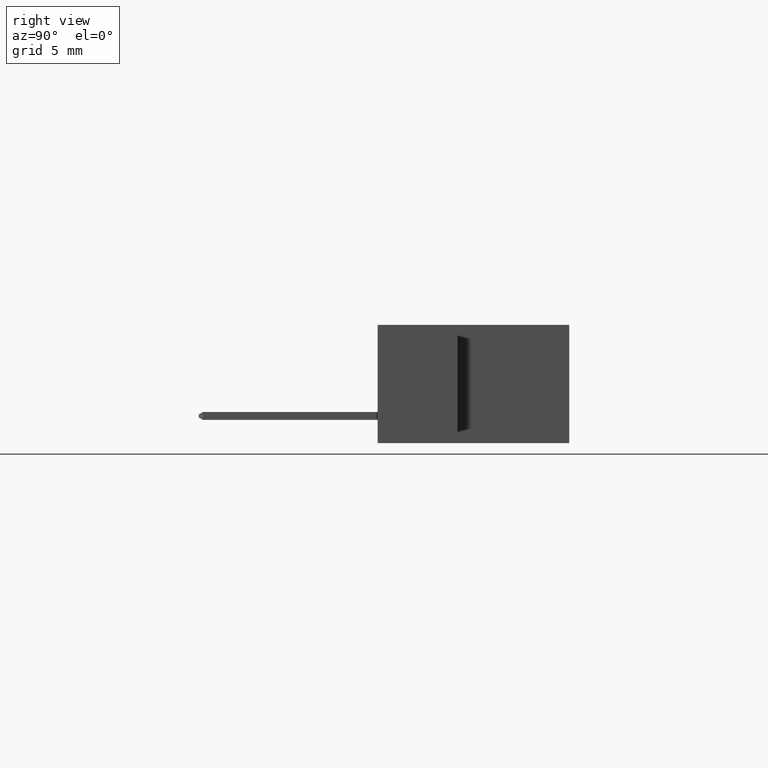
[diagram: clean part render]
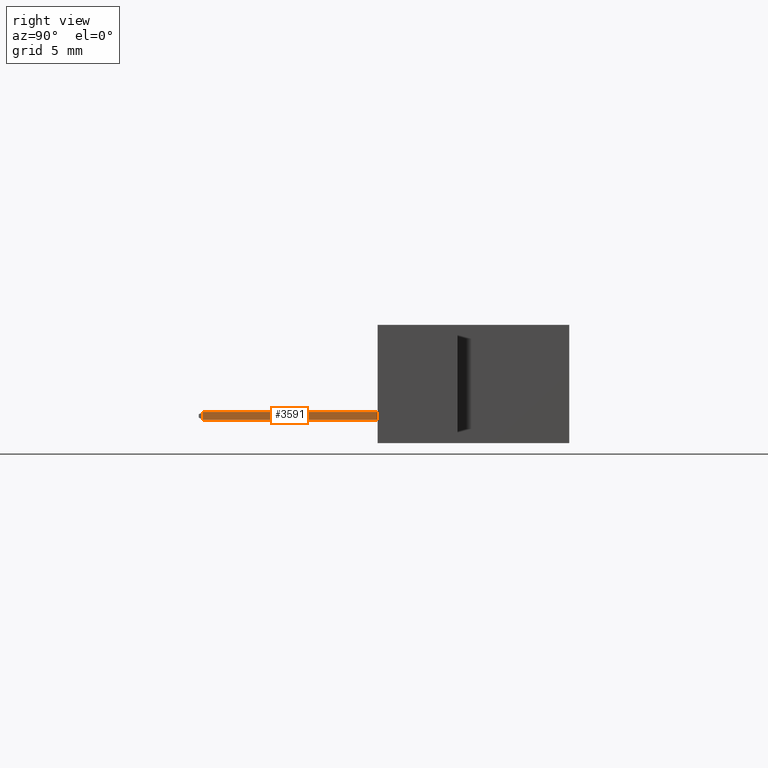
[diagram: same view with one face highlighted and labeled with its STEP entity id]
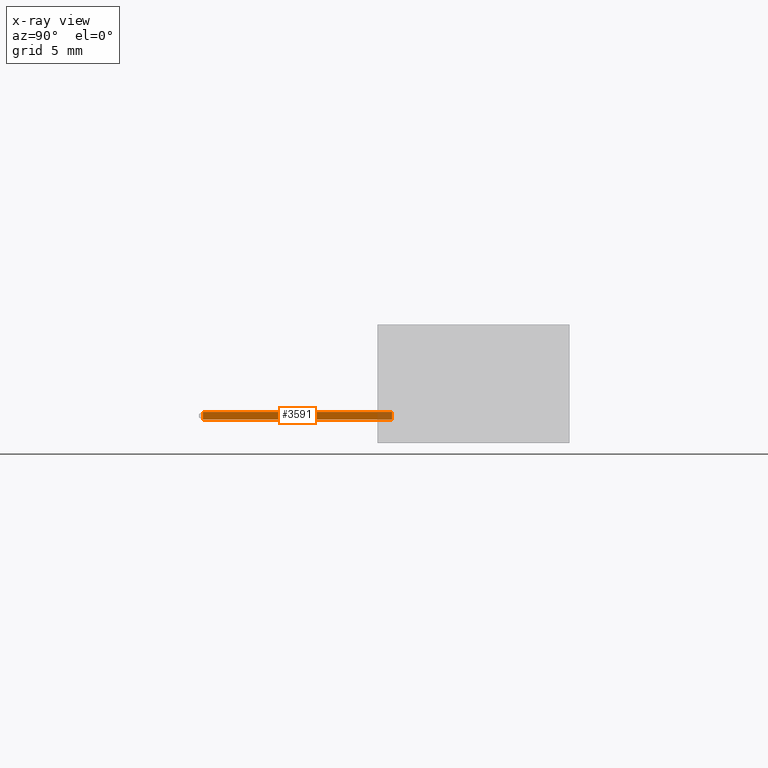
[diagram: x-ray of the same camera — body ghosted, the highlighted face saturated]
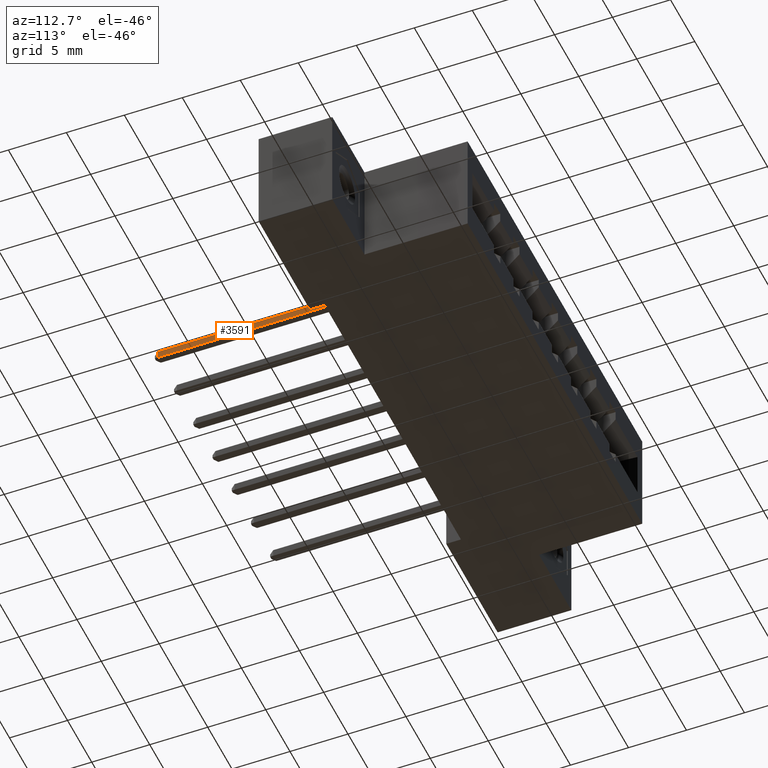
[diagram: same view with one face highlighted and labeled with its STEP entity id]
A machine part, right view. The second image highlights one B-rep face of the part: STEP entity #3591.
The next image is the same camera in x-ray: the body ghosted, the highlighted face saturated — about 8% of this face is hidden behind the body in this view.
A second angle (auxiliary view) of the same face is appended — the face is thin or edge-on in the first view.
In plain terms, the highlighted planar face has unit normal (1, 0, 0).
Its self-contained STEP definition (entity closure, byte-faithful):
#402 = DIRECTION ( 'NONE',  ( -1.000000000000000000, -2.544936014532320200E-014, 9.159473330114183600E-015 ) ) ;
#799 = EDGE_LOOP ( 'NONE', ( #1017, #9956, #958, #6189 ) ) ;
#853 = VERTEX_POINT ( 'NONE', #3652 ) ;
#958 = ORIENTED_EDGE ( 'NONE', *, *, #9579, .T. ) ;
#1017 = ORIENTED_EDGE ( 'NONE', *, *, #9608, .F. ) ;
#1546 = VERTEX_POINT ( 'NONE', #2357 ) ;
#1590 = VECTOR ( 'NONE', #402, 39.37007874015748100 ) ;
#1615 = PLANE ( 'NONE',  #7802 ) ;
#2357 = CARTESIAN_POINT ( 'NONE',  ( 1.205213203435613800, 0.01250000000003114600, -0.01250000000002315600 ) ) ;
#2822 = VERTEX_POINT ( 'NONE', #8397 ) ;
#3109 = CARTESIAN_POINT ( 'NONE',  ( 1.205213203435586200, -0.6274562485045830400, -0.01250000000001960500 ) ) ;
#3196 = VECTOR ( 'NONE', #7454, 39.37007874015748100 ) ;
#3199 = DIRECTION ( 'NONE',  ( -1.000000000000000000, -2.509104035652979400E-014, 9.159473330114178800E-015 ) ) ;
#3578 = CARTESIAN_POINT ( 'NONE',  ( 0.6132132034356070300, 0.03750000000001578500, -0.01250000000000649200 ) ) ;
#3591 = ADVANCED_FACE ( 'NONE', ( #9272 ), #1615, .T. ) ;
#3652 = CARTESIAN_POINT ( 'NONE',  ( 0.6132132034356070300, 0.03750000000001578500, -0.01250000000000649200 ) ) ;
#3739 = VECTOR ( 'NONE', #8637, 39.37007874015748100 ) ;
#4834 = CARTESIAN_POINT ( 'NONE',  ( 0.6132132034356054800, 0.01250000000001550600, -0.01250000000000649200 ) ) ;
#5284 = LINE ( 'NONE', #3578, #3196 ) ;
#6189 = ORIENTED_EDGE ( 'NONE', *, *, #6518, .T. ) ;
#6294 = LINE ( 'NONE', #9412, #3739 ) ;
#6382 = EDGE_CURVE ( 'NONE', #2822, #1546, #9281, .T. ) ;
#6518 = EDGE_CURVE ( 'NONE', #6540, #853, #6294, .T. ) ;
#6540 = VERTEX_POINT ( 'NONE', #4834 ) ;
#7016 = VECTOR ( 'NONE', #9276, 39.37007874015748100 ) ;
#7061 = CARTESIAN_POINT ( 'NONE',  ( 0.6132132034355886100, -0.6274562485046046900, -0.01250000000000020900 ) ) ;
#7454 = DIRECTION ( 'NONE',  ( -1.000000000000000000, -2.549319773163020100E-014, 9.159473330114185200E-015 ) ) ;
#7784 = LINE ( 'NONE', #9689, #1590 ) ;
#7802 = AXIS2_PLACEMENT_3D ( 'NONE', #7061, #7823, #3199 ) ;
#7823 = DIRECTION ( 'NONE',  ( -9.159473330114551200E-015, 1.481097155425845000E-014, -1.000000000000000000 ) ) ;
#8397 = CARTESIAN_POINT ( 'NONE',  ( 1.205213203435613800, 0.03750000000003146000, -0.01250000000002315600 ) ) ;
#8637 = DIRECTION ( 'NONE',  ( 2.468859728010246100E-014, 1.000000000000000000, -1.481097155425741500E-014 ) ) ;
#9272 = FACE_OUTER_BOUND ( 'NONE', #799, .T. ) ;
#9276 = DIRECTION ( 'NONE',  ( -2.468859728010246100E-014, -1.000000000000000000, 1.481097155425741500E-014 ) ) ;
#9281 = LINE ( 'NONE', #3109, #7016 ) ;
#9412 = CARTESIAN_POINT ( 'NONE',  ( 0.6132132034355886100, -0.6274562485046046900, -0.01250000000000020900 ) ) ;
#9579 = EDGE_CURVE ( 'NONE', #1546, #6540, #7784, .T. ) ;
#9608 = EDGE_CURVE ( 'NONE', #2822, #853, #5284, .T. ) ;
#9689 = CARTESIAN_POINT ( 'NONE',  ( 0.6132132034356054800, 0.01250000000001550600, -0.01250000000000649200 ) ) ;
#9956 = ORIENTED_EDGE ( 'NONE', *, *, #6382, .T. ) ;